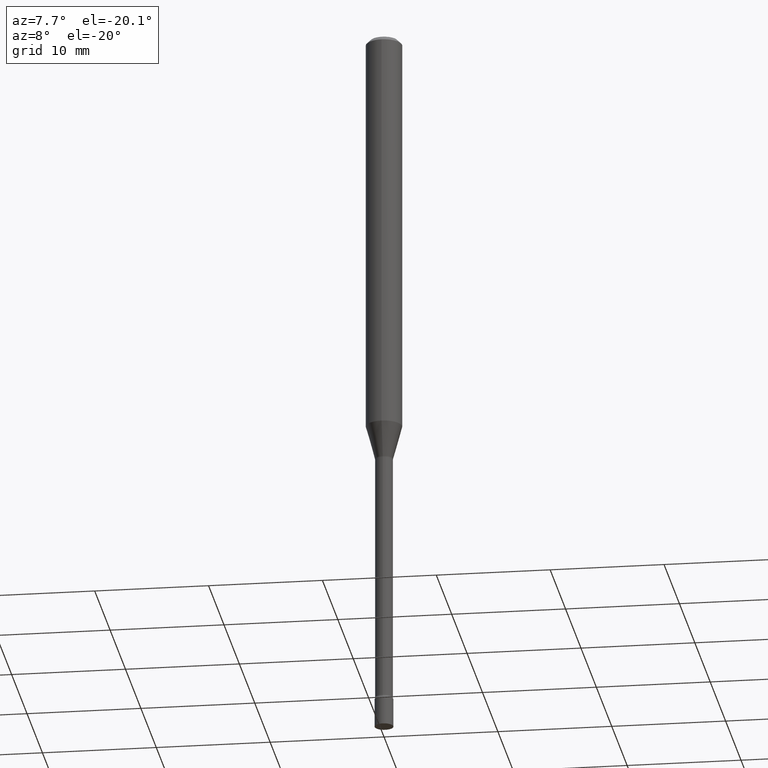
[diagram: clean part render]
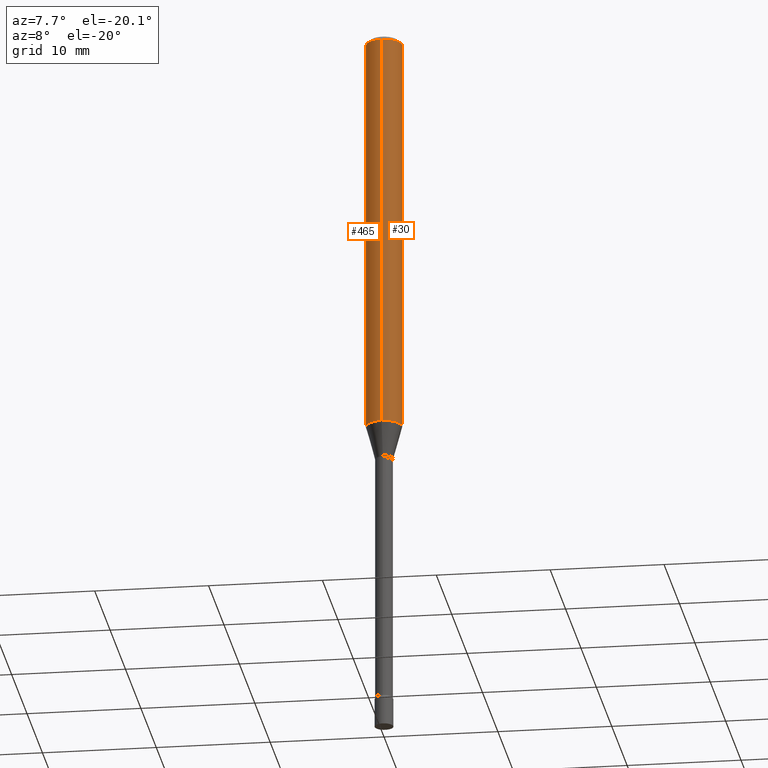
[diagram: same view with one multi-face feature highlighted, each face labeled with its STEP entity id]
A machine part, auxiliary view. The highlighted faces form ONE feature: a constant-radius fillet chain: 2 tangent blend faces with common blend radius 1.5875 mm. The faces share edges in the B-rep.
Their STEP definitions:
[1] entity #30 (Cylinder):
#17 = VECTOR ( 'NONE', #223, 39.37007874015748143 ) ;
#26 = AXIS2_PLACEMENT_3D ( 'NONE', #426, #368, #325 ) ;
#30 = ADVANCED_FACE ( 'NONE', ( #462 ), #457, .T. ) ;
#83 = ORIENTED_EDGE ( 'NONE', *, *, #280, .T. ) ;
#84 = ORIENTED_EDGE ( 'NONE', *, *, #451, .F. ) ;
#87 = CIRCLE ( 'NONE', #155, 0.06250000000000000000 ) ;
#129 = CARTESIAN_POINT ( 'NONE',  ( -4.364351673553916201E-16, -0.06250000000000000000, 2.182181472521343443E-16 ) ) ;
#152 = EDGE_CURVE ( 'NONE', #288, #284, #472, .T. ) ;
#155 = AXIS2_PLACEMENT_3D ( 'NONE', #508, #425, #289 ) ;
#163 = AXIS2_PLACEMENT_3D ( 'NONE', #225, #337, #507 ) ;
#209 = EDGE_LOOP ( 'NONE', ( #253, #83, #401, #84 ) ) ;
#223 = DIRECTION ( 'NONE',  ( -2.445462509514312655E-29, 3.491490356034149509E-15, 1.000000000000000000 ) ) ;
#225 = CARTESIAN_POINT ( 'NONE',  ( 0.000000000000000000, 0.000000000000000000, 0.000000000000000000 ) ) ;
#236 = CARTESIAN_POINT ( 'NONE',  ( 4.440892098500972274E-16, 0.06249999999999995143, -0.01500000000000024751 ) ) ;
#253 = ORIENTED_EDGE ( 'NONE', *, *, #424, .T. ) ;
#280 = EDGE_CURVE ( 'NONE', #331, #284, #341, .T. ) ;
#284 = VERTEX_POINT ( 'NONE', #236 ) ;
#288 = VERTEX_POINT ( 'NONE', #382 ) ;
#289 = DIRECTION ( 'NONE',  ( -6.982962677686265922E-15, -1.000000000000000000, 4.370956789862821150E-15 ) ) ;
#290 = VECTOR ( 'NONE', #447, 39.37007874015748143 ) ;
#325 = DIRECTION ( 'NONE',  ( -6.982962677686265922E-15, -1.000000000000000000, 3.483106191921935554E-15 ) ) ;
#331 = VERTEX_POINT ( 'NONE', #473 ) ;
#337 = DIRECTION ( 'NONE',  ( -2.445462509514312655E-29, 3.491490356034149509E-15, 1.000000000000000000 ) ) ;
#341 = LINE ( 'NONE', #506, #17 ) ;
#368 = DIRECTION ( 'NONE',  ( -2.445462509514312655E-29, 3.491490356034149509E-15, 1.000000000000000000 ) ) ;
#382 = CARTESIAN_POINT ( 'NONE',  ( -4.364351673553912750E-16, -0.06250000000000005551, -0.01499999999999981209 ) ) ;
#398 = LINE ( 'NONE', #129, #290 ) ;
#401 = ORIENTED_EDGE ( 'NONE', *, *, #152, .F. ) ;
#424 = EDGE_CURVE ( 'NONE', #453, #331, #87, .T. ) ;
#425 = DIRECTION ( 'NONE',  ( -2.445462509514312655E-29, 3.491490356034149509E-15, 1.000000000000000000 ) ) ;
#426 = CARTESIAN_POINT ( 'NONE',  ( 3.668193764271476392E-31, -5.237235534051234815E-17, -0.01500000000000003067 ) ) ;
#447 = DIRECTION ( 'NONE',  ( -2.445462509514312655E-29, 3.491490356034149509E-15, 1.000000000000000000 ) ) ;
#451 = EDGE_CURVE ( 'NONE', #453, #288, #398, .T. ) ;
#453 = VERTEX_POINT ( 'NONE', #515 ) ;
#457 = CYLINDRICAL_SURFACE ( 'NONE', #163, 0.06250000000000000000 ) ;
#462 = FACE_OUTER_BOUND ( 'NONE', #209, .T. ) ;
#472 = CIRCLE ( 'NONE', #26, 0.06250000000000000000 ) ;
#473 = CARTESIAN_POINT ( 'NONE',  ( 4.440892098500967344E-16, 0.06249999999999506645, -1.405760976698175124 ) ) ;
#506 = CARTESIAN_POINT ( 'NONE',  ( 4.440892098500625669E-16, 0.06250000000000000000, -2.182181472521343443E-16 ) ) ;
#507 = DIRECTION ( 'NONE',  ( -6.982962677686265922E-15, -1.000000000000000000, 3.491490356034149509E-15 ) ) ;
#508 = CARTESIAN_POINT ( 'NONE',  ( 3.437735765853609990E-29, -4.908200893030823515E-15, -1.405760976698174902 ) ) ;
#515 = CARTESIAN_POINT ( 'NONE',  ( -4.364351673553574033E-16, -0.06250000000000494049, -1.405760976698174458 ) ) ;
[2] entity #465 (Cylinder):
#11 = ORIENTED_EDGE ( 'NONE', *, *, #280, .F. ) ;
#15 = DIRECTION ( 'NONE',  ( -6.982962677686265922E-15, -1.000000000000000000, 3.483106191921935554E-15 ) ) ;
#17 = VECTOR ( 'NONE', #223, 39.37007874015748143 ) ;
#27 = AXIS2_PLACEMENT_3D ( 'NONE', #265, #140, #15 ) ;
#37 = ORIENTED_EDGE ( 'NONE', *, *, #309, .F. ) ;
#42 = FACE_OUTER_BOUND ( 'NONE', #164, .T. ) ;
#85 = DIRECTION ( 'NONE',  ( -6.982962677686265922E-15, -1.000000000000000000, 3.491490356034149509E-15 ) ) ;
#100 = ORIENTED_EDGE ( 'NONE', *, *, #269, .T. ) ;
#127 = DIRECTION ( 'NONE',  ( -2.445462509514312655E-29, 3.491490356034149509E-15, 1.000000000000000000 ) ) ;
#129 = CARTESIAN_POINT ( 'NONE',  ( -4.364351673553916201E-16, -0.06250000000000000000, 2.182181472521343443E-16 ) ) ;
#140 = DIRECTION ( 'NONE',  ( -2.445462509514312655E-29, 3.491490356034149509E-15, 1.000000000000000000 ) ) ;
#164 = EDGE_LOOP ( 'NONE', ( #11, #100, #188, #37 ) ) ;
#188 = ORIENTED_EDGE ( 'NONE', *, *, #451, .T. ) ;
#223 = DIRECTION ( 'NONE',  ( -2.445462509514312655E-29, 3.491490356034149509E-15, 1.000000000000000000 ) ) ;
#228 = DIRECTION ( 'NONE',  ( -6.982962677686265922E-15, -1.000000000000000000, 4.370956789862821150E-15 ) ) ;
#236 = CARTESIAN_POINT ( 'NONE',  ( 4.440892098500972274E-16, 0.06249999999999995143, -0.01500000000000024751 ) ) ;
#265 = CARTESIAN_POINT ( 'NONE',  ( 3.668193764271476392E-31, -5.237235534051234815E-17, -0.01500000000000003067 ) ) ;
#269 = EDGE_CURVE ( 'NONE', #331, #453, #327, .T. ) ;
#280 = EDGE_CURVE ( 'NONE', #331, #284, #341, .T. ) ;
#284 = VERTEX_POINT ( 'NONE', #236 ) ;
#285 = CYLINDRICAL_SURFACE ( 'NONE', #391, 0.06250000000000000000 ) ;
#288 = VERTEX_POINT ( 'NONE', #382 ) ;
#290 = VECTOR ( 'NONE', #447, 39.37007874015748143 ) ;
#297 = DIRECTION ( 'NONE',  ( -2.445462509514312655E-29, 3.491490356034149509E-15, 1.000000000000000000 ) ) ;
#309 = EDGE_CURVE ( 'NONE', #284, #288, #317, .T. ) ;
#317 = CIRCLE ( 'NONE', #27, 0.06250000000000000000 ) ;
#327 = CIRCLE ( 'NONE', #511, 0.06250000000000000000 ) ;
#331 = VERTEX_POINT ( 'NONE', #473 ) ;
#341 = LINE ( 'NONE', #506, #17 ) ;
#382 = CARTESIAN_POINT ( 'NONE',  ( -4.364351673553912750E-16, -0.06250000000000005551, -0.01499999999999981209 ) ) ;
#391 = AXIS2_PLACEMENT_3D ( 'NONE', #438, #127, #85 ) ;
#398 = LINE ( 'NONE', #129, #290 ) ;
#418 = CARTESIAN_POINT ( 'NONE',  ( 3.437735765853609990E-29, -4.908200893030823515E-15, -1.405760976698174902 ) ) ;
#438 = CARTESIAN_POINT ( 'NONE',  ( 0.000000000000000000, 0.000000000000000000, 0.000000000000000000 ) ) ;
#447 = DIRECTION ( 'NONE',  ( -2.445462509514312655E-29, 3.491490356034149509E-15, 1.000000000000000000 ) ) ;
#451 = EDGE_CURVE ( 'NONE', #453, #288, #398, .T. ) ;
#453 = VERTEX_POINT ( 'NONE', #515 ) ;
#465 = ADVANCED_FACE ( 'NONE', ( #42 ), #285, .T. ) ;
#473 = CARTESIAN_POINT ( 'NONE',  ( 4.440892098500967344E-16, 0.06249999999999506645, -1.405760976698175124 ) ) ;
#506 = CARTESIAN_POINT ( 'NONE',  ( 4.440892098500625669E-16, 0.06250000000000000000, -2.182181472521343443E-16 ) ) ;
#511 = AXIS2_PLACEMENT_3D ( 'NONE', #418, #297, #228 ) ;
#515 = CARTESIAN_POINT ( 'NONE',  ( -4.364351673553574033E-16, -0.06250000000000494049, -1.405760976698174458 ) ) ;